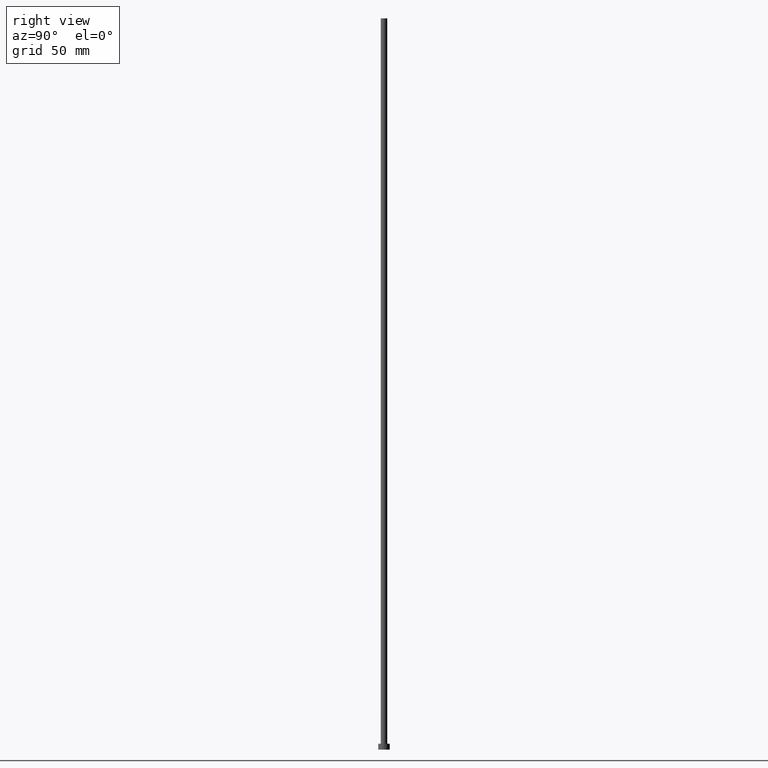
[diagram: clean part render]
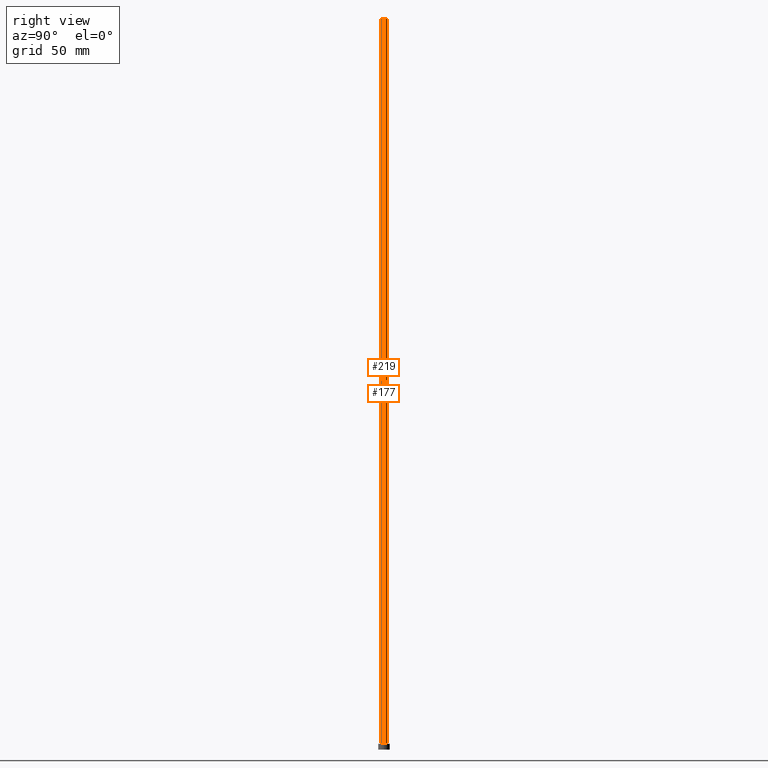
[diagram: same view with one multi-face feature highlighted, each face labeled with its STEP entity id]
A machine part, right view. The highlighted faces form ONE feature: a constant-radius fillet chain: 2 tangent blend faces with common blend radius 2.25 mm. The faces share edges in the B-rep.
Their STEP definitions:
[1] entity #177 (Cylinder):
#1 = CARTESIAN_POINT ( 'NONE',  ( 2.250000000000000000, 2.755455298081544285E-16, 500.0000000000000000 ) ) ;
#11 = DIRECTION ( 'NONE',  ( 1.000000000000000000, 0.000000000000000000, 0.000000000000000000 ) ) ;
#23 = EDGE_CURVE ( 'NONE', #130, #134, #189, .T. ) ;
#27 = CARTESIAN_POINT ( 'NONE',  ( 2.250000000000000000, 2.755455298081544285E-16, 4.000000000000000000 ) ) ;
#28 = VERTEX_POINT ( 'NONE', #193 ) ;
#31 = VECTOR ( 'NONE', #238, 1000.000000000000000 ) ;
#38 = CARTESIAN_POINT ( 'NONE',  ( -2.250000000000000000, 0.000000000000000000, 4.000000000000000000 ) ) ;
#49 = VECTOR ( 'NONE', #218, 1000.000000000000000 ) ;
#50 = VERTEX_POINT ( 'NONE', #38 ) ;
#82 = LINE ( 'NONE', #122, #49 ) ;
#85 = ORIENTED_EDGE ( 'NONE', *, *, #144, .T. ) ;
#96 = CARTESIAN_POINT ( 'NONE',  ( 2.250000000000000000, 2.755455298081544285E-16, 500.0000000000000000 ) ) ;
#101 = EDGE_CURVE ( 'NONE', #28, #50, #82, .T. ) ;
#103 = DIRECTION ( 'NONE',  ( 1.000000000000000000, 0.000000000000000000, 0.000000000000000000 ) ) ;
#104 = DIRECTION ( 'NONE',  ( -1.000000000000000000, 0.000000000000000000, 0.000000000000000000 ) ) ;
#121 = CARTESIAN_POINT ( 'NONE',  ( 0.000000000000000000, 0.000000000000000000, 500.0000000000000000 ) ) ;
#122 = CARTESIAN_POINT ( 'NONE',  ( -2.250000000000000000, 0.000000000000000000, 500.0000000000000000 ) ) ;
#130 = VERTEX_POINT ( 'NONE', #1 ) ;
#134 = VERTEX_POINT ( 'NONE', #27 ) ;
#136 = CYLINDRICAL_SURFACE ( 'NONE', #229, 2.250000000000000000 ) ;
#143 = CARTESIAN_POINT ( 'NONE',  ( 0.000000000000000000, 0.000000000000000000, 4.000000000000000000 ) ) ;
#144 = EDGE_CURVE ( 'NONE', #134, #50, #178, .T. ) ;
#160 = AXIS2_PLACEMENT_3D ( 'NONE', #143, #224, #103 ) ;
#164 = AXIS2_PLACEMENT_3D ( 'NONE', #180, #245, #11 ) ;
#177 = ADVANCED_FACE ( 'NONE', ( #239 ), #136, .T. ) ;
#178 = CIRCLE ( 'NONE', #160, 2.250000000000000000 ) ;
#180 = CARTESIAN_POINT ( 'NONE',  ( 0.000000000000000000, 0.000000000000000000, 500.0000000000000000 ) ) ;
#183 = ORIENTED_EDGE ( 'NONE', *, *, #233, .F. ) ;
#189 = LINE ( 'NONE', #96, #31 ) ;
#193 = CARTESIAN_POINT ( 'NONE',  ( -2.250000000000000000, 0.000000000000000000, 500.0000000000000000 ) ) ;
#209 = EDGE_LOOP ( 'NONE', ( #183, #227, #85, #230 ) ) ;
#218 = DIRECTION ( 'NONE',  ( -0.000000000000000000, -0.000000000000000000, -1.000000000000000000 ) ) ;
#224 = DIRECTION ( 'NONE',  ( 0.000000000000000000, 0.000000000000000000, 1.000000000000000000 ) ) ;
#225 = CIRCLE ( 'NONE', #164, 2.250000000000000000 ) ;
#227 = ORIENTED_EDGE ( 'NONE', *, *, #23, .T. ) ;
#229 = AXIS2_PLACEMENT_3D ( 'NONE', #121, #243, #104 ) ;
#230 = ORIENTED_EDGE ( 'NONE', *, *, #101, .F. ) ;
#233 = EDGE_CURVE ( 'NONE', #130, #28, #225, .T. ) ;
#238 = DIRECTION ( 'NONE',  ( -0.000000000000000000, -0.000000000000000000, -1.000000000000000000 ) ) ;
#239 = FACE_OUTER_BOUND ( 'NONE', #209, .T. ) ;
#243 = DIRECTION ( 'NONE',  ( -0.000000000000000000, -0.000000000000000000, -1.000000000000000000 ) ) ;
#245 = DIRECTION ( 'NONE',  ( 0.000000000000000000, 0.000000000000000000, 1.000000000000000000 ) ) ;
[2] entity #219 (Cylinder):
#1 = CARTESIAN_POINT ( 'NONE',  ( 2.250000000000000000, 2.755455298081544285E-16, 500.0000000000000000 ) ) ;
#6 = EDGE_CURVE ( 'NONE', #28, #130, #111, .T. ) ;
#12 = EDGE_CURVE ( 'NONE', #50, #134, #251, .T. ) ;
#17 = DIRECTION ( 'NONE',  ( 1.000000000000000000, 0.000000000000000000, 0.000000000000000000 ) ) ;
#23 = EDGE_CURVE ( 'NONE', #130, #134, #189, .T. ) ;
#27 = CARTESIAN_POINT ( 'NONE',  ( 2.250000000000000000, 2.755455298081544285E-16, 4.000000000000000000 ) ) ;
#28 = VERTEX_POINT ( 'NONE', #193 ) ;
#31 = VECTOR ( 'NONE', #238, 1000.000000000000000 ) ;
#33 = DIRECTION ( 'NONE',  ( 1.000000000000000000, 0.000000000000000000, 0.000000000000000000 ) ) ;
#35 = DIRECTION ( 'NONE',  ( 0.000000000000000000, 0.000000000000000000, 1.000000000000000000 ) ) ;
#38 = CARTESIAN_POINT ( 'NONE',  ( -2.250000000000000000, 0.000000000000000000, 4.000000000000000000 ) ) ;
#49 = VECTOR ( 'NONE', #218, 1000.000000000000000 ) ;
#50 = VERTEX_POINT ( 'NONE', #38 ) ;
#59 = DIRECTION ( 'NONE',  ( 0.000000000000000000, 0.000000000000000000, 1.000000000000000000 ) ) ;
#82 = LINE ( 'NONE', #122, #49 ) ;
#96 = CARTESIAN_POINT ( 'NONE',  ( 2.250000000000000000, 2.755455298081544285E-16, 500.0000000000000000 ) ) ;
#98 = CARTESIAN_POINT ( 'NONE',  ( 0.000000000000000000, 0.000000000000000000, 500.0000000000000000 ) ) ;
#101 = EDGE_CURVE ( 'NONE', #28, #50, #82, .T. ) ;
#111 = CIRCLE ( 'NONE', #255, 2.250000000000000000 ) ;
#113 = ORIENTED_EDGE ( 'NONE', *, *, #12, .T. ) ;
#122 = CARTESIAN_POINT ( 'NONE',  ( -2.250000000000000000, 0.000000000000000000, 500.0000000000000000 ) ) ;
#124 = ORIENTED_EDGE ( 'NONE', *, *, #23, .F. ) ;
#125 = DIRECTION ( 'NONE',  ( -0.000000000000000000, -0.000000000000000000, -1.000000000000000000 ) ) ;
#127 = FACE_OUTER_BOUND ( 'NONE', #246, .T. ) ;
#130 = VERTEX_POINT ( 'NONE', #1 ) ;
#134 = VERTEX_POINT ( 'NONE', #27 ) ;
#148 = AXIS2_PLACEMENT_3D ( 'NONE', #203, #125, #206 ) ;
#166 = ORIENTED_EDGE ( 'NONE', *, *, #101, .T. ) ;
#189 = LINE ( 'NONE', #96, #31 ) ;
#193 = CARTESIAN_POINT ( 'NONE',  ( -2.250000000000000000, 0.000000000000000000, 500.0000000000000000 ) ) ;
#203 = CARTESIAN_POINT ( 'NONE',  ( 0.000000000000000000, 0.000000000000000000, 500.0000000000000000 ) ) ;
#204 = ORIENTED_EDGE ( 'NONE', *, *, #6, .F. ) ;
#206 = DIRECTION ( 'NONE',  ( -1.000000000000000000, 0.000000000000000000, 0.000000000000000000 ) ) ;
#211 = CARTESIAN_POINT ( 'NONE',  ( 0.000000000000000000, 0.000000000000000000, 4.000000000000000000 ) ) ;
#218 = DIRECTION ( 'NONE',  ( -0.000000000000000000, -0.000000000000000000, -1.000000000000000000 ) ) ;
#219 = ADVANCED_FACE ( 'NONE', ( #127 ), #248, .T. ) ;
#238 = DIRECTION ( 'NONE',  ( -0.000000000000000000, -0.000000000000000000, -1.000000000000000000 ) ) ;
#246 = EDGE_LOOP ( 'NONE', ( #124, #204, #166, #113 ) ) ;
#247 = AXIS2_PLACEMENT_3D ( 'NONE', #211, #35, #33 ) ;
#248 = CYLINDRICAL_SURFACE ( 'NONE', #148, 2.250000000000000000 ) ;
#251 = CIRCLE ( 'NONE', #247, 2.250000000000000000 ) ;
#255 = AXIS2_PLACEMENT_3D ( 'NONE', #98, #59, #17 ) ;